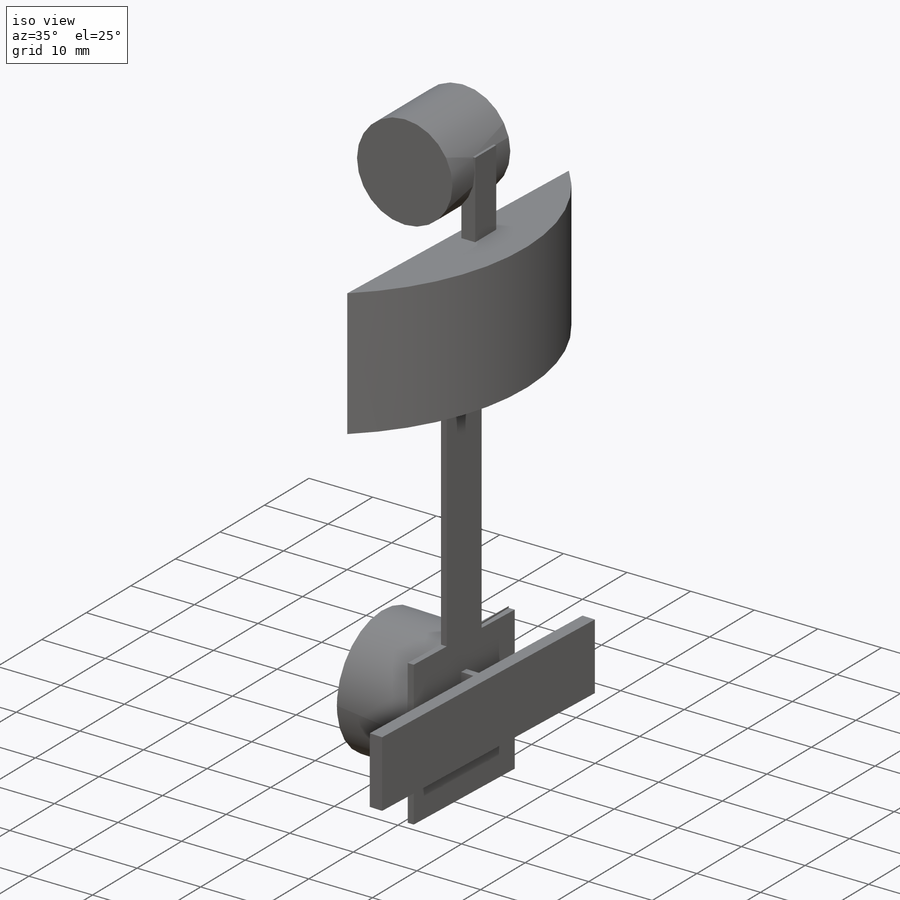
[diagram: iso view]
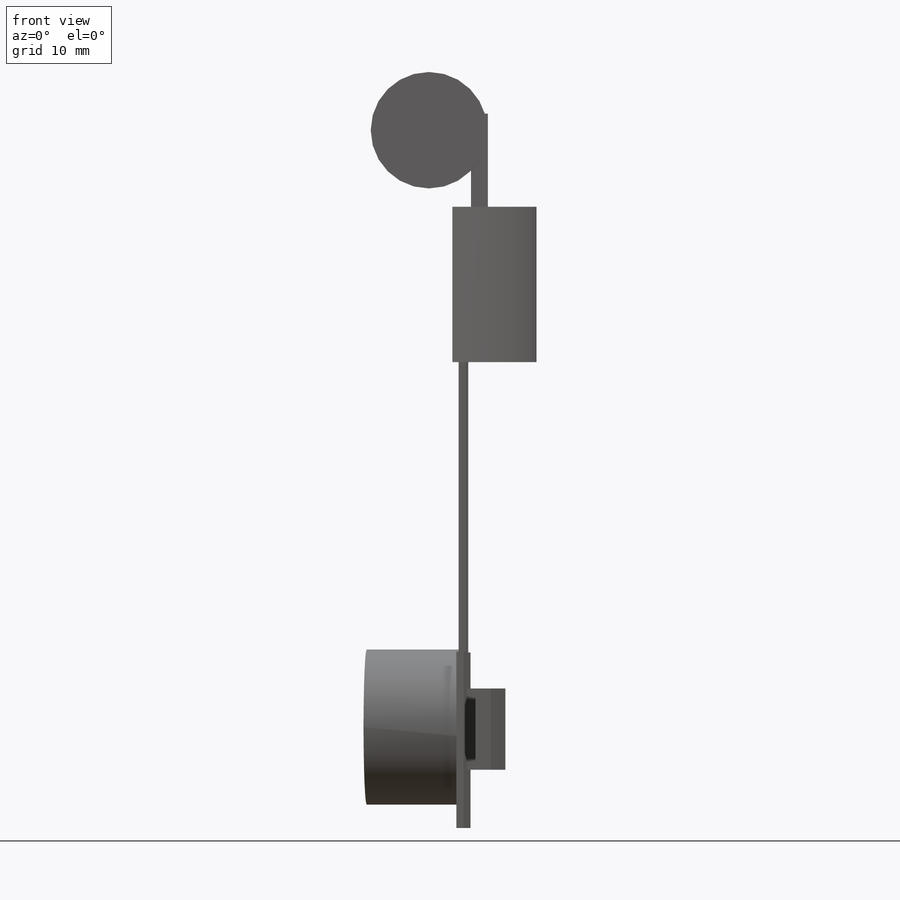
[diagram: front view]
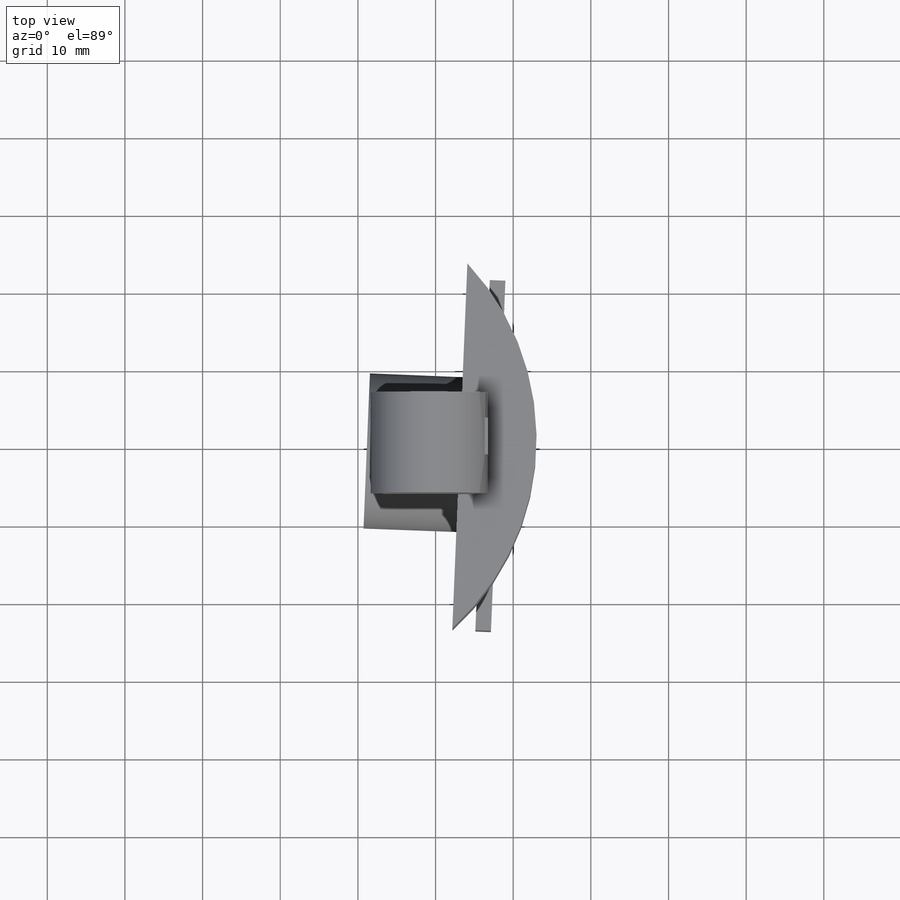
[diagram: top view]
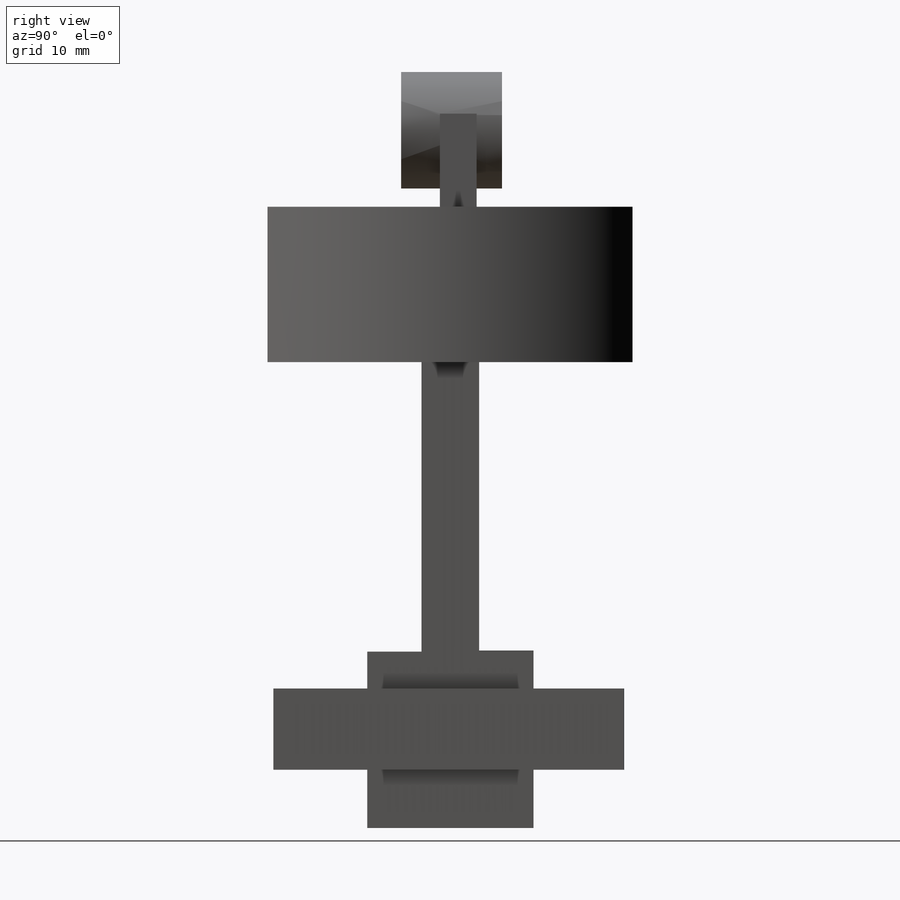
[diagram: right view]
SOLIDWORKS PART (.sldprt)
format: sldprt  version: not decoded by parser v0  size: 353,792 bytes
history: native  units: mm
features: sketch x16, extrude x8, cut_extrude x8, material x1 (+13 scaffold rows collapsed)
feature tree (46):
  scaffold x13  (default folders/planes/origin — collapsed)
  material  "Material <not specified>"
  sketch  "Sketch1"  dims[D1=66.0mm D2=47.0mm]
  extrude  "Boss-Extrude1"  Depth=20mm
  sketch  "Sketch2"
  extrude  "Boss-Extrude2"  Depth=60mm
  sketch  "Sketch3"  dims[D1=20.0mm D2=13.0mm]
  extrude  "Boss-Extrude3"  Depth=12mm
  sketch  "Sketch6"  dims[D1=3.0mm D2=13.0mm]
  extrude  "Boss-Extrude4"  Depth=3mm
  sketch  "Sketch7"
  extrude  "Boss-Extrude5"  Depth=4mm
  sketch  "Sketch9"  dims[D1=2.0mm]
  cut_extrude  "Cut-Extrude2"  Depth=22mm
  sketch  "Sketch10"  dims[D1=2.0mm]
  cut_extrude  "Cut-Extrude3"  Depth=22mm
  sketch  "Sketch16"
  cut_extrude  "Cut-Extrude7"  Depth=60mm
  sketch  "Sketch19"
  cut_extrude  "Cut-Extrude8"  Depth=60mm
  sketch  "Sketch20"
  cut_extrude  "Cut-Extrude9"  Depth=7mm
  sketch  "Sketch21"
  cut_extrude  "Cut-Extrude10"  Depth=7mm
  sketch  "Sketch24"  dims[D1=7.0mm]
  cut_extrude  "Cut-Extrude11"  Depth=7mm
  sketch  "Sketch25"
  cut_extrude  "Cut-Extrude12"  Depth=7mm
  sketch  "Sketch31"
  extrude  "Boss-Extrude8"  Depth=12mm
  sketch  "Sketch32"  dims[D1=15.0mm]
  extrude  "Boss-Extrude12"  Depth=5mm
  sketch  "Sketch35"
  extrude  "Boss-Extrude14"  Depth=8mm
decode coverage: 23 of 32 modeling features carry decoded parameters
note: suppression state not decoded; provenance and decode notes live in map.json
